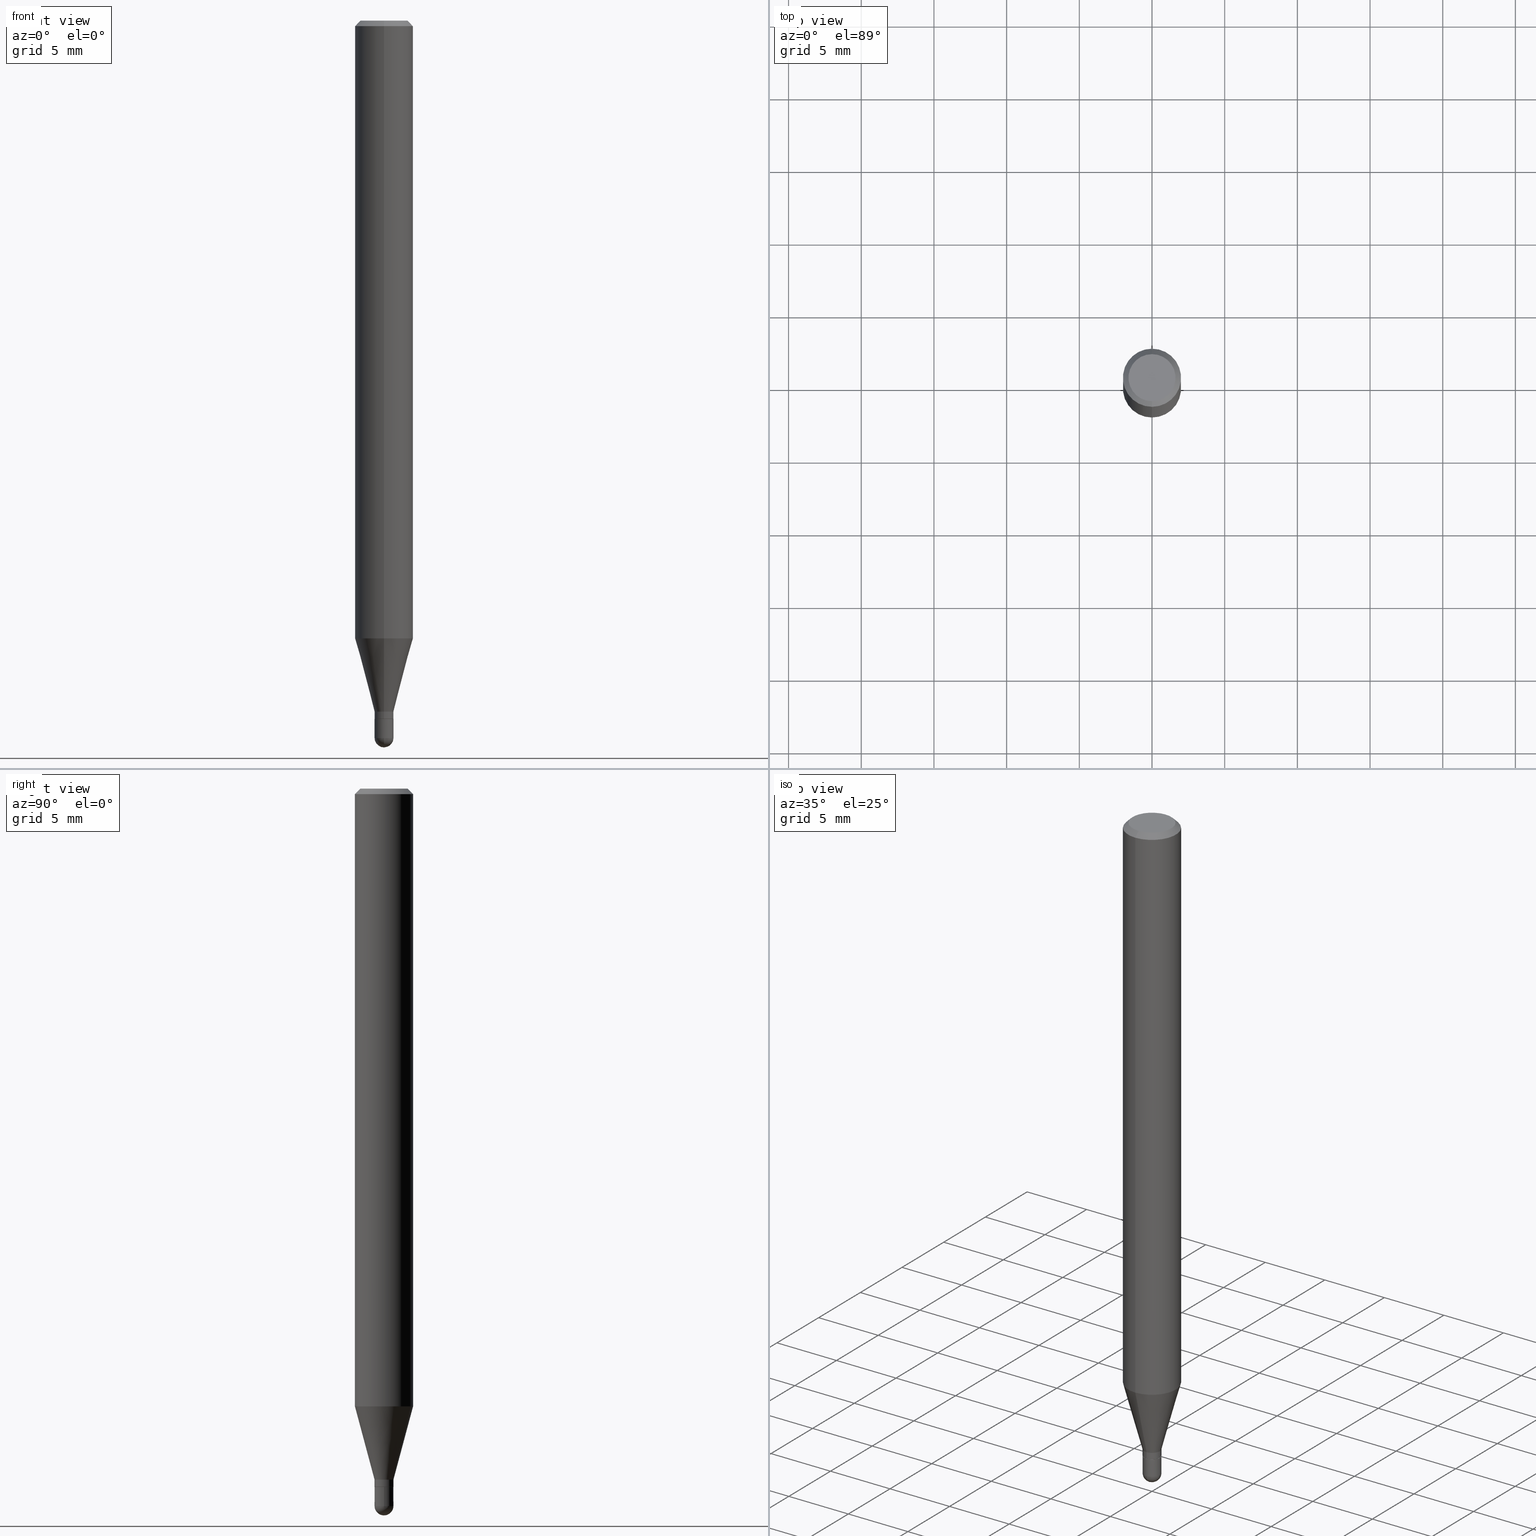
[diagram: canonical four-view strip — front | top / right | iso, engineering-drawing reading convention]
A machine part, canonical four-view strip (front | top / right | iso — engineering-drawing reading convention). The complete STEP part file that produces these views, byte-faithful:
ISO-10303-21;
HEADER;
FILE_DESCRIPTION (( 'STEP AP203' ),
    '1' );
FILE_NAME ('02034.STEP',
    '2024-03-07T19:57:47',
    ( '' ),
    ( '' ),
    'SwSTEP 2.0',
    'SolidWorks 2023',
    '' );
FILE_SCHEMA (( 'CONFIG_CONTROL_DESIGN' ));
ENDSEC;

DATA;
#1 = ORIENTED_EDGE ( 'NONE', *, *, #239, .T. ) ;
#2 = CYLINDRICAL_SURFACE ( 'NONE', #133, 0.02559999999999992143 ) ;
#3 = AXIS2_PLACEMENT_3D ( 'NONE', #367, #329, #167 ) ;
#4 = ORIENTED_EDGE ( 'NONE', *, *, #506, .T. ) ;
#5 = PERSON_AND_ORGANIZATION_ROLE ( 'design_owner' ) ;
#6 = DIRECTION ( 'NONE',  ( -6.982962677686264344E-15, -1.000000000000000000, 3.469013325287953293E-15 ) ) ;
#7 = DIRECTION ( 'NONE',  ( 6.982962677686265922E-15, 1.000000000000000000, 0.000000000000000000 ) ) ;
#8 = PLANE ( 'NONE',  #427 ) ;
#9 = EDGE_CURVE ( 'NONE', #489, #104, #83, .T. ) ;
#10 = CIRCLE ( 'NONE', #298, 0.06375000000000000111 ) ;
#11 = SPHERICAL_SURFACE ( 'NONE', #229, 0.02559999999999993531 ) ;
#12 = CARTESIAN_POINT ( 'NONE',  ( 0.000000000000000000, 0.000000000000000000, 0.000000000000000000 ) ) ;
#13 = CARTESIAN_POINT ( 'NONE',  ( 1.783462266758313745E-16, 0.02509999999999339843, -1.891699999999999937 ) ) ;
#14 = ADVANCED_FACE ( 'NONE', ( #326 ), #474, .F. ) ;
#15 = ORIENTED_EDGE ( 'NONE', *, *, #361, .T. ) ;
#16 = VECTOR ( 'NONE', #328, 39.37007874015748143 ) ;
#17 = CC_DESIGN_APPROVAL ( #455, ( #325 ) ) ;
#18 = CALENDAR_DATE ( 2024, 7, 3 ) ;
#19 = ADVANCED_FACE ( 'NONE', ( #238 ), #344, .T. ) ;
#20 = CARTESIAN_POINT ( 'NONE',  ( 4.751301343537101385E-29, -6.783599093238347569E-15, -1.942899999999999849 ) ) ;
#21 = CARTESIAN_POINT ( 'NONE',  ( 0.000000000000000000, 0.000000000000000000, 0.000000000000000000 ) ) ;
#22 = APPROVAL_DATE_TIME ( #28, #312 ) ;
#23 = EDGE_LOOP ( 'NONE', ( #35, #319 ) ) ;
#24 = EDGE_CURVE ( 'NONE', #197, #212, #233, .T. ) ;
#25 = PERSON_AND_ORGANIZATION ( #225, #350 ) ;
#26 = AXIS2_PLACEMENT_3D ( 'NONE', #294, #206, #486 ) ;
#27 = VERTEX_POINT ( 'NONE', #476 ) ;
#28 = DATE_AND_TIME ( #461, #338 ) ;
#29 = VERTEX_POINT ( 'NONE', #214 ) ;
#30 = ORIENTED_EDGE ( 'NONE', *, *, #506, .F. ) ;
#31 = EDGE_CURVE ( 'NONE', #191, #104, #275, .T. ) ;
#32 = VERTEX_POINT ( 'NONE', #379 ) ;
#33 = CARTESIAN_POINT ( 'NONE',  ( 4.751301343537101385E-29, -6.783599093238347569E-15, -1.942899999999999849 ) ) ;
#34 = LOCAL_TIME ( 14, 57, 47.00000000000000000, #182 ) ;
#35 = ORIENTED_EDGE ( 'NONE', *, *, #220, .F. ) ;
#36 = DIRECTION ( 'NONE',  ( -2.445468806185136597E-29, 3.491481338843145583E-15, 1.000000000000000000 ) ) ;
#37 = EDGE_CURVE ( 'NONE', #387, #322, #494, .T. ) ;
#38 = CLOSED_SHELL ( 'NONE', ( #448, #252, #58, #71, #188, #19, #66, #223, #385, #498, #213, #165 ) ) ;
#39 = APPROVAL_PERSON_ORGANIZATION ( #303, #455, #110 ) ;
#40 = CARTESIAN_POINT ( 'NONE',  ( -0.02560000000000000470, 1.818989403545856810E-16, -1.259247383105256139E-30 ) ) ;
#41 = ORIENTED_EDGE ( 'NONE', *, *, #334, .F. ) ;
#42 = CYLINDRICAL_SURFACE ( 'NONE', #26, 0.02559999999999992143 ) ;
#43 = EDGE_CURVE ( 'NONE', #489, #212, #510, .T. ) ;
#44 = DIMENSIONAL_EXPONENTS ( 1.000000000000000000, 0.000000000000000000, 0.000000000000000000, 0.000000000000000000, 0.000000000000000000, 0.000000000000000000, 0.000000000000000000 ) ;
#45 = DIRECTION ( 'NONE',  ( -1.000000000000000000, 7.105427357601001070E-15, -4.926315508542082329E-29 ) ) ;
#46 = LENGTH_MEASURE_WITH_UNIT ( LENGTH_MEASURE( 0.02539999999999999897 ), #416 );
#47 = AXIS2_PLACEMENT_3D ( 'NONE', #118, #435, #73 ) ;
#48 = CIRCLE ( 'NONE', #70, 0.07875000000000000056 ) ;
#49 = CARTESIAN_POINT ( 'NONE',  ( 1.818989403546307939E-16, 0.02559999999999338152, -1.871499999999999719 ) ) ;
#50 = DIRECTION ( 'NONE',  ( -2.445483200868437747E-29, 3.491460724837364104E-15, 1.000000000000000000 ) ) ;
#51 = LINE ( 'NONE', #253, #323 ) ;
#52 = DIRECTION ( 'NONE',  ( 2.445483200868437467E-29, -3.491460724837363709E-15, -1.000000000000000000 ) ) ;
#53 = CARTESIAN_POINT ( 'NONE',  ( 4.576721810425280278E-29, -6.534268746533124944E-15, -1.871499999999999719 ) ) ;
#54 = APPLICATION_PROTOCOL_DEFINITION ( 'international standard', 'config_control_design', 1994, #356 ) ;
#55 = DIRECTION ( 'NONE',  ( -2.445468806185136877E-29, 3.491481338843145188E-15, 1.000000000000000000 ) ) ;
#56 = ORIENTED_EDGE ( 'NONE', *, *, #37, .F. ) ;
#57 = CARTESIAN_POINT ( 'NONE',  ( 4.624897829482389577E-29, -6.603050522812422233E-15, -1.891199999999999992 ) ) ;
#58 = ADVANCED_FACE ( 'NONE', ( #64 ), #336, .T. ) ;
#59 = DIRECTION ( 'NONE',  ( -2.445483200868437467E-29, 3.491460724837363709E-15, 1.000000000000000000 ) ) ;
#60 = EDGE_LOOP ( 'NONE', ( #436, #451, #204, #72 ) ) ;
#61 = CIRCLE ( 'NONE', #466, 0.02560000000000000470 ) ;
#62 = AXIS2_PLACEMENT_3D ( 'NONE', #208, #368, #420 ) ;
#63 = ORIENTED_EDGE ( 'NONE', *, *, #313, .F. ) ;
#64 = FACE_OUTER_BOUND ( 'NONE', #357, .T. ) ;
#65 = PERSON_AND_ORGANIZATION_ROLE ( 'creator' ) ;
#66 = ADVANCED_FACE ( 'NONE', ( #101 ), #178, .T. ) ;
#67 = ORIENTED_EDGE ( 'NONE', *, *, #267, .T. ) ;
#68 = DATE_AND_TIME ( #311, #482 ) ;
#69 = CIRCLE ( 'NONE', #363, 0.02510000000000000078 ) ;
#70 = AXIS2_PLACEMENT_3D ( 'NONE', #274, #85, #479 ) ;
#71 = ADVANCED_FACE ( 'NONE', ( #259 ), #348, .T. ) ;
#72 = ORIENTED_EDGE ( 'NONE', *, *, #293, .F. ) ;
#73 = DIRECTION ( 'NONE',  ( -6.982962677686265922E-15, -1.000000000000000000, 0.000000000000000000 ) ) ;
#74 = CARTESIAN_POINT ( 'NONE',  ( 0.000000000000000000, 0.000000000000000000, 0.000000000000000000 ) ) ;
#75 = VERTEX_POINT ( 'NONE', #98 ) ;
#76 = DIRECTION ( 'NONE',  ( -6.982962677686265922E-15, -1.000000000000000000, 0.000000000000000000 ) ) ;
#77 = CARTESIAN_POINT ( 'NONE',  ( 1.787638445488146959E-16, 0.02559999999999339887, -1.891699999999999937 ) ) ;
#78 = CARTESIAN_POINT ( 'NONE',  ( -1.818989403545378809E-16, -0.02560000000000675624, -1.942899999999999849 ) ) ;
#79 = VECTOR ( 'NONE', #320, 39.37007874015748143 ) ;
#80 = VECTOR ( 'NONE', #446, 39.37007874015748143 ) ;
#81 = DIRECTION ( 'NONE',  ( 1.000000000000000000, -6.982962677686267499E-15, 4.876176775795935232E-29 ) ) ;
#82 = LINE ( 'NONE', #173, #434 ) ;
#83 = LINE ( 'NONE', #483, #79 ) ;
#84 = LINE ( 'NONE', #414, #211 ) ;
#85 = DIRECTION ( 'NONE',  ( -2.445483200868437747E-29, 3.491460724837364104E-15, 1.000000000000000000 ) ) ;
#86 = AXIS2_PLACEMENT_3D ( 'NONE', #393, #460, #452 ) ;
#87 = ORIENTED_EDGE ( 'NONE', *, *, #293, .T. ) ;
#88 = CIRCLE ( 'NONE', #146, 0.02559999999999993531 ) ;
#89 = EDGE_CURVE ( 'NONE', #322, #27, #286, .T. ) ;
#90 = DIRECTION ( 'NONE',  ( -2.445468806185136597E-29, 3.491481338843145583E-15, 1.000000000000000000 ) ) ;
#91 = DIRECTION ( 'NONE',  ( -6.982962677686264344E-15, -1.000000000000000000, 3.491460724837363315E-15 ) ) ;
#92 = DIRECTION ( 'NONE',  ( -6.982962677686265922E-15, -1.000000000000000000, 0.000000000000000000 ) ) ;
#93 = ORIENTED_EDGE ( 'NONE', *, *, #403, .F. ) ;
#94 = CARTESIAN_POINT ( 'NONE',  ( -5.402642173245076924E-16, -0.07875000000000004219, -0.01499999999999948944 ) ) ;
#95 = EDGE_LOOP ( 'NONE', ( #472, #290, #231, #277 ) ) ;
#96 =( NAMED_UNIT ( * ) PLANE_ANGLE_UNIT ( ) SI_UNIT ( $, .RADIAN. ) );
#97 = AXIS2_PLACEMENT_3D ( 'NONE', #467, #431, #7 ) ;
#98 = CARTESIAN_POINT ( 'NONE',  ( 1.787638445488156819E-16, 0.02559999999999318376, -1.942899999999999849 ) ) ;
#99 = EDGE_CURVE ( 'NONE', #240, #489, #388, .T. ) ;
#100 = ORIENTED_EDGE ( 'NONE', *, *, #327, .T. ) ;
#101 = FACE_OUTER_BOUND ( 'NONE', #160, .T. ) ;
#102 = FACE_OUTER_BOUND ( 'NONE', #396, .T. ) ;
#103 = APPROVAL_STATUS ( 'not_yet_approved' ) ;
#104 = VERTEX_POINT ( 'NONE', #390 ) ;
#105 = CLOSED_SHELL ( 'NONE', ( #243, #412, #14, #228, #392 ) ) ;
#106 = LOCAL_TIME ( 14, 57, 47.00000000000000000, #222 ) ;
#107 = CC_DESIGN_PERSON_AND_ORGANIZATION_ASSIGNMENT ( #265, #184, ( #271 ) ) ;
#108 = CALENDAR_DATE ( 2024, 7, 3 ) ;
#109 = SECURITY_CLASSIFICATION_LEVEL ( 'unclassified' ) ;
#110 = APPROVAL_ROLE ( '' ) ;
#111 = DIRECTION ( 'NONE',  ( 6.982962677686264344E-15, 1.000000000000000000, -3.496114991891765576E-15 ) ) ;
#112 = APPROVAL_ROLE ( '' ) ;
#113 = AXIS2_PLACEMENT_3D ( 'NONE', #21, #139, #351 ) ;
#114 = AXIS2_PLACEMENT_3D ( 'NONE', #442, #50, #91 ) ;
#115 = SPHERICAL_SURFACE ( 'NONE', #97, 0.02559999999999993531 ) ;
#116 = ORIENTED_EDGE ( 'NONE', *, *, #347, .T. ) ;
#117 = AXIS2_PLACEMENT_3D ( 'NONE', #149, #422, #144 ) ;
#118 = CARTESIAN_POINT ( 'NONE',  ( 4.576721810425280278E-29, -6.534268746533124944E-15, -1.871499999999999719 ) ) ;
#119 = ORIENTED_EDGE ( 'NONE', *, *, #464, .T. ) ;
#120 = ORIENTED_EDGE ( 'NONE', *, *, #307, .T. ) ;
#121 = CARTESIAN_POINT ( 'NONE',  ( 0.000000000000000000, 0.000000000000000000, 0.000000000000000000 ) ) ;
#122 = ORIENTED_EDGE ( 'NONE', *, *, #235, .T. ) ;
#123 = CARTESIAN_POINT ( 'NONE',  ( 3.668224801302598957E-31, -5.237191087255964114E-17, -0.01499999999999976526 ) ) ;
#124 = EDGE_CURVE ( 'NONE', #309, #75, #61, .T. ) ;
#125 = EDGE_LOOP ( 'NONE', ( #93, #499, #273, #413 ) ) ;
#126 = VECTOR ( 'NONE', #366, 39.37007874015748143 ) ;
#127 = CC_DESIGN_APPROVAL ( #312, ( #154 ) ) ;
#128 = CARTESIAN_POINT ( 'NONE',  ( -4.888104823412213911E-16, -0.06375000000000000111, 4.576775909784569323E-16 ) ) ;
#129 = LINE ( 'NONE', #40, #80 ) ;
#130 = PLANE ( 'NONE',  #276 ) ;
#131 = ADVANCED_BREP_SHAPE_REPRESENTATION ( '02034', ( #140, #492, #163 ), #299 ) ;
#132 = CARTESIAN_POINT ( 'NONE',  ( 4.749112117836802061E-29, -6.786734189044164629E-15, -1.942899999999999849 ) ) ;
#133 = AXIS2_PLACEMENT_3D ( 'NONE', #74, #199, #365 ) ;
#134 = CIRCLE ( 'NONE', #221, 0.02559999999999993531 ) ;
#135 = DIRECTION ( 'NONE',  ( -2.445483200868437747E-29, 3.491460724837364104E-15, 1.000000000000000000 ) ) ;
#136 = CARTESIAN_POINT ( 'NONE',  ( 5.595524044110787031E-16, 0.07875000000000000056, -2.749525320809424424E-16 ) ) ;
#137 = CARTESIAN_POINT ( 'NONE',  ( -0.02560000000000000470, -6.512318230609377306E-15, -1.891699999999999937 ) ) ;
#138 = ORIENTED_EDGE ( 'NONE', *, *, #152, .F. ) ;
#139 = DIRECTION ( 'NONE',  ( -2.445483200868437747E-29, 3.491460724837364104E-15, 1.000000000000000000 ) ) ;
#140 = MANIFOLD_SOLID_BREP ( 'Body-Move/Copy2[1]', #105 ) ;
#141 = DIRECTION ( 'NONE',  ( 1.000000000000000000, -6.982962677686267499E-15, 4.876176775795935232E-29 ) ) ;
#142 = CC_DESIGN_PERSON_AND_ORGANIZATION_ASSIGNMENT ( #453, #5, ( #358 ) ) ;
#143 = CARTESIAN_POINT ( 'NONE',  ( 4.624897829482389577E-29, -6.603050522812422233E-15, -1.891199999999999992 ) ) ;
#144 = DIRECTION ( 'NONE',  ( -6.982962677686264344E-15, -1.000000000000000000, 3.491460724837364498E-15 ) ) ;
#145 = CIRCLE ( 'NONE', #349, 0.02510000000000000078 ) ;
#146 = AXIS2_PLACEMENT_3D ( 'NONE', #423, #372, #341 ) ;
#147 = DATE_AND_TIME ( #108, #34 ) ;
#148 = ORIENTED_EDGE ( 'NONE', *, *, #470, .F. ) ;
#149 = CARTESIAN_POINT ( 'NONE',  ( 0.000000000000000000, 0.000000000000000000, 0.000000000000000000 ) ) ;
#150 = COORDINATED_UNIVERSAL_TIME_OFFSET ( 5, 0, .BEHIND. ) ;
#151 = CARTESIAN_POINT ( 'NONE',  ( 4.751301343537101385E-29, -6.783599093238347569E-15, -1.942899999999999849 ) ) ;
#152 = EDGE_CURVE ( 'NONE', #27, #322, #186, .T. ) ;
#153 = CIRCLE ( 'NONE', #270, 0.07875000000000000056 ) ;
#154 = PRODUCT_DEFINITION_FORMATION_WITH_SPECIFIED_SOURCE ( 'ANY', '', #358, .NOT_KNOWN. ) ;
#155 = ORIENTED_EDGE ( 'NONE', *, *, #89, .F. ) ;
#156 = CARTESIAN_POINT ( 'NONE',  ( 4.626093340660422729E-29, -6.604835248689577715E-15, -1.891699999999999937 ) ) ;
#157 = APPLICATION_CONTEXT ( 'configuration controlled 3d designs of mechanical parts and assemblies' ) ;
#158 = EDGE_CURVE ( 'NONE', #27, #240, #51, .T. ) ;
#159 = DIRECTION ( 'NONE',  ( -2.445468806185136597E-29, 3.491481338843145583E-15, 1.000000000000000000 ) ) ;
#160 = EDGE_LOOP ( 'NONE', ( #335, #419, #398, #170 ) ) ;
#161 = EDGE_LOOP ( 'NONE', ( #430, #1, #63, #190 ) ) ;
#162 = VECTOR ( 'NONE', #207, 39.37007874015748143 ) ;
#163 = AXIS2_PLACEMENT_3D ( 'NONE', #12, #480, #484 ) ;
#164 = EDGE_LOOP ( 'NONE', ( #421, #353, #138, #278 ) ) ;
#165 = ADVANCED_FACE ( 'NONE', ( #248 ), #2, .T. ) ;
#166 = VERTEX_POINT ( 'NONE', #78 ) ;
#167 = DIRECTION ( 'NONE',  ( -6.982962677686266711E-15, -1.000000000000000000, 0.000000000000000000 ) ) ;
#168 = CARTESIAN_POINT ( 'NONE',  ( 4.576721810425280278E-29, -6.534268746533124944E-15, -1.871499999999999719 ) ) ;
#169 = DIRECTION ( 'NONE',  ( -2.445468806185136597E-29, 3.491481338843145583E-15, 1.000000000000000000 ) ) ;
#170 = ORIENTED_EDGE ( 'NONE', *, *, #31, .F. ) ;
#171 = CIRCLE ( 'NONE', #377, 0.02560000000000000470 ) ;
#172 = DIRECTION ( 'NONE',  ( 6.982962677686265922E-15, 1.000000000000000000, 0.000000000000000000 ) ) ;
#173 = CARTESIAN_POINT ( 'NONE',  ( 5.499083108677937401E-16, 0.07874999999999994504, -0.01500000000000004108 ) ) ;
#174 = PRODUCT_RELATED_PRODUCT_CATEGORY ( 'detail', '', ( #358 ) ) ;
#175 = MECHANICAL_CONTEXT ( 'NONE', #356, 'mechanical' ) ;
#176 = VECTOR ( 'NONE', #224, 39.37007874015748143 ) ;
#177 = AXIS2_PLACEMENT_3D ( 'NONE', #168, #386, #490 ) ;
#178 = CYLINDRICAL_SURFACE ( 'NONE', #113, 0.07875000000000000056 ) ;
#179 = DATE_AND_TIME ( #18, #245 ) ;
#180 = PRODUCT_DEFINITION_SHAPE ( 'NONE', 'NONE',  #325 ) ;
#181 = DIRECTION ( 'NONE',  ( -2.445468806185136597E-29, 3.491481338843145583E-15, 1.000000000000000000 ) ) ;
#182 = COORDINATED_UNIVERSAL_TIME_OFFSET ( 5, 0, .BEHIND. ) ;
#183 = CARTESIAN_POINT ( 'NONE',  ( 5.595524044111194280E-16, 0.07874999999999414413, -1.673141499577714519 ) ) ;
#184 = PERSON_AND_ORGANIZATION_ROLE ( 'classification_officer' ) ;
#185 = DIRECTION ( 'NONE',  ( -2.445483200868437747E-29, 3.491460724837364104E-15, 1.000000000000000000 ) ) ;
#186 = CIRCLE ( 'NONE', #418, 0.02559999999999992490 ) ;
#187 = ORIENTED_EDGE ( 'NONE', *, *, #124, .T. ) ;
#188 = ADVANCED_FACE ( 'NONE', ( #321 ), #395, .T. ) ;
#189 = PERSON_AND_ORGANIZATION_ROLE ( 'creator' ) ;
#190 = ORIENTED_EDGE ( 'NONE', *, *, #9, .F. ) ;
#191 = VERTEX_POINT ( 'NONE', #343 ) ;
#192 = CIRCLE ( 'NONE', #426, 0.02560000000000000470 ) ;
#193 = EDGE_CURVE ( 'NONE', #511, #378, #10, .T. ) ;
#194 = EDGE_LOOP ( 'NONE', ( #462, #406 ) ) ;
#195 = DIRECTION ( 'NONE',  ( -1.000000000000000000, 6.982962677686265922E-15, -4.876176775795935793E-29 ) ) ;
#196 = VERTEX_POINT ( 'NONE', #137 ) ;
#197 = VERTEX_POINT ( 'NONE', #504 ) ;
#198 = AXIS2_PLACEMENT_3D ( 'NONE', #217, #135, #384 ) ;
#199 = DIRECTION ( 'NONE',  ( -2.445483200868437747E-29, 3.491460724837364104E-15, 1.000000000000000000 ) ) ;
#200 = CC_DESIGN_SECURITY_CLASSIFICATION ( #271, ( #154 ) ) ;
#201 = FACE_OUTER_BOUND ( 'NONE', #164, .T. ) ;
#202 = CARTESIAN_POINT ( 'NONE',  ( 4.975360907851465623E-16, 0.06375000000000000111, 1.251634856169306932E-17 ) ) ;
#203 = DIRECTION ( 'NONE',  ( -2.445468806185136597E-29, 3.491481338843145583E-15, 1.000000000000000000 ) ) ;
#204 = ORIENTED_EDGE ( 'NONE', *, *, #158, .T. ) ;
#205 = CARTESIAN_POINT ( 'NONE',  ( 0.02560000000000000470, -6.783599093238346780E-15, -1.891699999999999937 ) ) ;
#206 = DIRECTION ( 'NONE',  ( -2.445483200868437747E-29, 3.491460724837364104E-15, 1.000000000000000000 ) ) ;
#207 = DIRECTION ( 'NONE',  ( -2.445483200868437747E-29, 3.491460724837363709E-15, 1.000000000000000000 ) ) ;
#208 = CARTESIAN_POINT ( 'NONE',  ( 4.626093340660422729E-29, -6.604835248689577715E-15, -1.891699999999999937 ) ) ;
#209 = DIRECTION ( 'NONE',  ( -2.445483200868437747E-29, 3.491460724837364104E-15, 1.000000000000000000 ) ) ;
#210 = AXIS2_PLACEMENT_3D ( 'NONE', #57, #219, #306 ) ;
#211 = VECTOR ( 'NONE', #55, 39.37007874015748143 ) ;
#212 = VERTEX_POINT ( 'NONE', #183 ) ;
#213 = ADVANCED_FACE ( 'NONE', ( #342 ), #305, .T. ) ;
#214 = CARTESIAN_POINT ( 'NONE',  ( 4.812810732125291051E-29, -6.874548563415640631E-15, -1.968499999999999694 ) ) ;
#215 = CARTESIAN_POINT ( 'NONE',  ( 4.626120571082823143E-29, -6.604796253174841162E-15, -1.891699999999999937 ) ) ;
#216 = DIRECTION ( 'NONE',  ( -6.982962677686266711E-15, -1.000000000000000000, 0.000000000000000000 ) ) ;
#217 = CARTESIAN_POINT ( 'NONE',  ( 4.091639429893126858E-29, -5.841707832871080184E-15, -1.673141499577714297 ) ) ;
#218 = DIRECTION ( 'NONE',  ( -1.000000000000000000, 6.982962677686265922E-15, -4.883557194083112340E-29 ) ) ;
#219 = DIRECTION ( 'NONE',  ( -2.445483200868437747E-29, 3.491460724837364104E-15, 1.000000000000000000 ) ) ;
#220 = EDGE_CURVE ( 'NONE', #315, #387, #145, .T. ) ;
#221 = AXIS2_PLACEMENT_3D ( 'NONE', #471, #45, #260 ) ;
#222 = COORDINATED_UNIVERSAL_TIME_OFFSET ( 5, 0, .BEHIND. ) ;
#223 = ADVANCED_FACE ( 'NONE', ( #256 ), #263, .T. ) ;
#224 = DIRECTION ( 'NONE',  ( 5.024295867788190974E-15, 0.7071067811865681119, 0.7071067811865270336 ) ) ;
#225 = PERSON ( 'UNSPECIFIED', 'UNSPECIFIED', 'UNSPECIFIED', ('UNSPECIFIED'), ('UNSPECIFIED'), ('UNSPECIFIED') ) ;
#226 = ORIENTED_EDGE ( 'NONE', *, *, #24, .F. ) ;
#227 = CIRCLE ( 'NONE', #481, 0.02560000000000000470 ) ;
#228 = ADVANCED_FACE ( 'NONE', ( #247 ), #115, .T. ) ;
#229 = AXIS2_PLACEMENT_3D ( 'NONE', #132, #218, #172 ) ;
#230 = APPROVAL_STATUS ( 'not_yet_approved' ) ;
#231 = ORIENTED_EDGE ( 'NONE', *, *, #334, .T. ) ;
#232 = ORIENTED_EDGE ( 'NONE', *, *, #333, .F. ) ;
#233 = LINE ( 'NONE', #49, #16 ) ;
#234 = EDGE_LOOP ( 'NONE', ( #4, #475, #291, #415 ) ) ;
#235 = EDGE_CURVE ( 'NONE', #75, #32, #227, .T. ) ;
#236 = AXIS2_PLACEMENT_3D ( 'NONE', #123, #283, #440 ) ;
#237 = CARTESIAN_POINT ( 'NONE',  ( 1.818989403546307200E-16, 0.02559999999999323927, -1.891199999999999992 ) ) ;
#238 = FACE_OUTER_BOUND ( 'NONE', #437, .T. ) ;
#239 = EDGE_CURVE ( 'NONE', #212, #191, #445, .T. ) ;
#240 = VERTEX_POINT ( 'NONE', #373 ) ;
#241 = DIRECTION ( 'NONE',  ( 2.438088387897960049E-29, -3.491481338843145188E-15, -1.000000000000000000 ) ) ;
#242 = CC_DESIGN_DATE_AND_TIME_ASSIGNMENT ( #68, #456, ( #325 ) ) ;
#243 = ADVANCED_FACE ( 'NONE', ( #300 ), #244, .T. ) ;
#244 = CYLINDRICAL_SURFACE ( 'NONE', #389, 0.02560000000000000470 ) ;
#245 = LOCAL_TIME ( 14, 57, 47.00000000000000000, #150 ) ;
#246 = DIRECTION ( 'NONE',  ( -6.982962677686265922E-15, -1.000000000000000000, 3.491460724837363709E-15 ) ) ;
#247 = FACE_OUTER_BOUND ( 'NONE', #125, .T. ) ;
#248 = FACE_OUTER_BOUND ( 'NONE', #60, .T. ) ;
#249 = ORIENTED_EDGE ( 'NONE', *, *, #152, .T. ) ;
#250 = DIRECTION ( 'NONE',  ( -2.445483200868437747E-29, 3.491460724837364104E-15, 1.000000000000000000 ) ) ;
#251 = FACE_OUTER_BOUND ( 'NONE', #408, .T. ) ;
#252 = ADVANCED_FACE ( 'NONE', ( #201 ), #449, .T. ) ;
#253 = CARTESIAN_POINT ( 'NONE',  ( -1.787638445487678572E-16, -0.02559999999999992143, 8.938139455583624813E-17 ) ) ;
#254 = ORIENTED_EDGE ( 'NONE', *, *, #193, .F. ) ;
#255 = LINE ( 'NONE', #94, #496 ) ;
#256 = FACE_OUTER_BOUND ( 'NONE', #95, .T. ) ;
#257 = CARTESIAN_POINT ( 'NONE',  ( 4.451638707024993845E-16, 0.06375000000000000111, -1.050321363233444415E-16 ) ) ;
#258 = EDGE_CURVE ( 'NONE', #387, #315, #69, .T. ) ;
#259 = FACE_OUTER_BOUND ( 'NONE', #161, .T. ) ;
#260 = DIRECTION ( 'NONE',  ( -7.105427357601001070E-15, -1.000000000000000000, 0.000000000000000000 ) ) ;
#261 = DATE_TIME_ROLE ( 'classification_date' ) ;
#262 = LINE ( 'NONE', #468, #512 ) ;
#263 = CONICAL_SURFACE ( 'NONE', #374, 0.07875000000000000056, 0.7853981633974483900 ) ;
#264 = CIRCLE ( 'NONE', #177, 0.02559999999999991796 ) ;
#265 = PERSON_AND_ORGANIZATION ( #225, #350 ) ;
#266 = APPROVAL_ROLE ( '' ) ;
#267 = EDGE_CURVE ( 'NONE', #32, #166, #192, .T. ) ;
#268 = PERSON_AND_ORGANIZATION ( #225, #350 ) ;
#269 = LINE ( 'NONE', #505, #126 ) ;
#270 = AXIS2_PLACEMENT_3D ( 'NONE', #371, #250, #6 ) ;
#271 = SECURITY_CLASSIFICATION ( '', '', #109 ) ;
#272 = CC_DESIGN_PERSON_AND_ORGANIZATION_ASSIGNMENT ( #458, #500, ( #154 ) ) ;
#273 = ORIENTED_EDGE ( 'NONE', *, *, #124, .F. ) ;
#274 = CARTESIAN_POINT ( 'NONE',  ( 3.668224801302598957E-31, -5.237191087255964114E-17, -0.01499999999999976526 ) ) ;
#275 = CIRCLE ( 'NONE', #236, 0.07875000000000000056 ) ;
#276 = AXIS2_PLACEMENT_3D ( 'NONE', #257, #52, #383 ) ;
#277 = ORIENTED_EDGE ( 'NONE', *, *, #31, .T. ) ;
#278 = ORIENTED_EDGE ( 'NONE', *, *, #307, .F. ) ;
#279 = EDGE_LOOP ( 'NONE', ( #402, #284 ) ) ;
#280 = EDGE_CURVE ( 'NONE', #212, #489, #153, .T. ) ;
#281 = CC_DESIGN_PERSON_AND_ORGANIZATION_ASSIGNMENT ( #268, #65, ( #325 ) ) ;
#282 = ORIENTED_EDGE ( 'NONE', *, *, #355, .F. ) ;
#283 = DIRECTION ( 'NONE',  ( -2.445483200868437747E-29, 3.491460724837364104E-15, 1.000000000000000000 ) ) ;
#284 = ORIENTED_EDGE ( 'NONE', *, *, #333, .T. ) ;
#285 = DIRECTION ( 'NONE',  ( -6.982962677686266711E-15, -1.000000000000000000, 0.000000000000000000 ) ) ;
#286 = CIRCLE ( 'NONE', #210, 0.02559999999999992490 ) ;
#287 = FACE_OUTER_BOUND ( 'NONE', #23, .T. ) ;
#288 = DIRECTION ( 'NONE',  ( -2.445483200868437747E-29, 3.491460724837364104E-15, 1.000000000000000000 ) ) ;
#289 = APPROVAL_PERSON_ORGANIZATION ( #425, #312, #266 ) ;
#290 = ORIENTED_EDGE ( 'NONE', *, *, #428, .F. ) ;
#291 = ORIENTED_EDGE ( 'NONE', *, *, #43, .F. ) ;
#292 = DIRECTION ( 'NONE',  ( 1.000000000000000000, -6.982962677686263555E-15, 0.000000000000000000 ) ) ;
#293 = EDGE_CURVE ( 'NONE', #197, #240, #441, .T. ) ;
#294 = CARTESIAN_POINT ( 'NONE',  ( 0.000000000000000000, 0.000000000000000000, 0.000000000000000000 ) ) ;
#295 =( CONVERSION_BASED_UNIT ( 'INCH', #46 ) LENGTH_UNIT ( ) NAMED_UNIT ( #44 ) );
#296 = CARTESIAN_POINT ( 'NONE',  ( 4.626120571082823143E-29, -6.604796253174841162E-15, -1.891699999999999937 ) ) ;
#297 = DIRECTION ( 'NONE',  ( 4.937700262164548042E-15, 0.7071067811865451302, -0.7071067811865499042 ) ) ;
#298 = AXIS2_PLACEMENT_3D ( 'NONE', #497, #209, #340 ) ;
#299 =( GEOMETRIC_REPRESENTATION_CONTEXT ( 3 ) GLOBAL_UNCERTAINTY_ASSIGNED_CONTEXT ( ( #502 ) ) GLOBAL_UNIT_ASSIGNED_CONTEXT ( ( #295, #96, #380 ) ) REPRESENTATION_CONTEXT ( 'NONE', 'WORKASPACE' ) );
#300 = FACE_OUTER_BOUND ( 'NONE', #443, .T. ) ;
#301 = ORIENTED_EDGE ( 'NONE', *, *, #267, .F. ) ;
#302 = DIRECTION ( 'NONE',  ( -1.807323732225330139E-15, -0.2588190451025181860, 0.9659258262890689783 ) ) ;
#303 = PERSON_AND_ORGANIZATION ( #225, #350 ) ;
#304 = DESIGN_CONTEXT ( 'detailed design', #157, 'design' ) ;
#305 = CONICAL_SURFACE ( 'NONE', #432, 0.02510000000000000078, 0.7853981633974739252 ) ;
#306 = DIRECTION ( 'NONE',  ( -6.982962677686265922E-15, -1.000000000000000000, 0.000000000000000000 ) ) ;
#307 = EDGE_CURVE ( 'NONE', #315, #27, #269, .T. ) ;
#308 = SHAPE_DEFINITION_REPRESENTATION ( #180, #131 ) ;
#309 = VERTEX_POINT ( 'NONE', #316 ) ;
#310 = CYLINDRICAL_SURFACE ( 'NONE', #324, 0.02560000000000000470 ) ;
#311 = CALENDAR_DATE ( 2024, 7, 3 ) ;
#312 = APPROVAL ( #103, 'UNSPECIFIED' ) ;
#313 = EDGE_CURVE ( 'NONE', #104, #191, #48, .T. ) ;
#314 = CIRCLE ( 'NONE', #62, 0.02560000000000000470 ) ;
#315 = VERTEX_POINT ( 'NONE', #318 ) ;
#316 = CARTESIAN_POINT ( 'NONE',  ( 0.02560000000000000470, -6.872981015512730918E-15, -1.942899999999999849 ) ) ;
#317 = DIRECTION ( 'NONE',  ( 1.000000000000000000, -6.982962677686263555E-15, 0.000000000000000000 ) ) ;
#318 = CARTESIAN_POINT ( 'NONE',  ( -1.752723632098790469E-16, -0.02510000000000660661, -1.891699999999999937 ) ) ;
#319 = ORIENTED_EDGE ( 'NONE', *, *, #258, .F. ) ;
#320 = DIRECTION ( 'NONE',  ( -2.445483200868437747E-29, 3.491460724837363709E-15, 1.000000000000000000 ) ) ;
#321 = FACE_OUTER_BOUND ( 'NONE', #234, .T. ) ;
#322 = VERTEX_POINT ( 'NONE', #237 ) ;
#323 = VECTOR ( 'NONE', #382, 39.37007874015748143 ) ;
#324 = AXIS2_PLACEMENT_3D ( 'NONE', #409, #36, #141 ) ;
#325 = PRODUCT_DEFINITION ( 'UNKNOWN', '', #154, #304 ) ;
#326 = FACE_OUTER_BOUND ( 'NONE', #279, .T. ) ;
#327 = EDGE_CURVE ( 'NONE', #166, #309, #411, .T. ) ;
#328 = DIRECTION ( 'NONE',  ( 1.839019923739600315E-15, 0.2588190451025249583, 0.9659258262890670910 ) ) ;
#329 = DIRECTION ( 'NONE',  ( -2.445483200868437747E-29, 3.491460724837364104E-15, 1.000000000000000000 ) ) ;
#330 = ORIENTED_EDGE ( 'NONE', *, *, #403, .T. ) ;
#331 = CARTESIAN_POINT ( 'NONE',  ( 4.626120571082823143E-29, -6.604796253174841162E-15, -1.891699999999999937 ) ) ;
#332 = ORIENTED_EDGE ( 'NONE', *, *, #439, .F. ) ;
#333 = EDGE_CURVE ( 'NONE', #196, #399, #171, .T. ) ;
#334 = EDGE_CURVE ( 'NONE', #378, #191, #82, .T. ) ;
#335 = ORIENTED_EDGE ( 'NONE', *, *, #239, .F. ) ;
#336 = CONICAL_SURFACE ( 'NONE', #86, 0.07875000000000000056, 0.7853981633974483900 ) ;
#337 = APPLICATION_PROTOCOL_DEFINITION ( 'international standard', 'config_control_design', 1994, #157 ) ;
#338 = LOCAL_TIME ( 14, 57, 47.00000000000000000, #508 ) ;
#339 = DIRECTION ( 'NONE',  ( 1.000000000000000000, -6.982962677686263555E-15, 0.000000000000000000 ) ) ;
#340 = DIRECTION ( 'NONE',  ( -6.982962677686264344E-15, -1.000000000000000000, 3.491460724837363315E-15 ) ) ;
#341 = DIRECTION ( 'NONE',  ( 6.982962677686265922E-15, 1.000000000000000000, 0.000000000000000000 ) ) ;
#342 = FACE_OUTER_BOUND ( 'NONE', #424, .T. ) ;
#343 = CARTESIAN_POINT ( 'NONE',  ( 5.595524044111200197E-16, 0.07874999999999994504, -0.01500000000000004108 ) ) ;
#344 = CONICAL_SURFACE ( 'NONE', #47, 0.02559999999999991796, 0.2617993877991502960 ) ;
#345 = CARTESIAN_POINT ( 'NONE',  ( -1.787638445487220540E-16, -0.02560000000000645440, -1.871499999999999719 ) ) ;
#346 = CARTESIAN_POINT ( 'NONE',  ( 4.626120571082823143E-29, -6.604796253174841162E-15, -1.891699999999999937 ) ) ;
#347 = EDGE_CURVE ( 'NONE', #322, #197, #262, .T. ) ;
#348 = CYLINDRICAL_SURFACE ( 'NONE', #117, 0.07875000000000000056 ) ;
#349 = AXIS2_PLACEMENT_3D ( 'NONE', #296, #447, #216 ) ;
#350 = ORGANIZATION ( 'UNSPECIFIED', 'UNSPECIFIED', '' ) ;
#351 = DIRECTION ( 'NONE',  ( -6.982962677686264344E-15, -1.000000000000000000, 3.491460724837364498E-15 ) ) ;
#352 = DIRECTION ( 'NONE',  ( -6.982962677686265922E-15, -1.000000000000000000, 0.000000000000000000 ) ) ;
#353 = ORIENTED_EDGE ( 'NONE', *, *, #37, .T. ) ;
#354 = DATE_AND_TIME ( #397, #106 ) ;
#355 = EDGE_CURVE ( 'NONE', #309, #399, #84, .T. ) ;
#356 = APPLICATION_CONTEXT ( 'configuration controlled 3d designs of mechanical parts and assemblies' ) ;
#357 = EDGE_LOOP ( 'NONE', ( #254, #119, #509, #41 ) ) ;
#358 = PRODUCT ( '02034', '02034', '', ( #175 ) ) ;
#359 = AXIS2_PLACEMENT_3D ( 'NONE', #53, #185, #352 ) ;
#360 = AXIS2_PLACEMENT_3D ( 'NONE', #33, #362, #317 ) ;
#361 = EDGE_CURVE ( 'NONE', #32, #196, #129, .T. ) ;
#362 = DIRECTION ( 'NONE',  ( -2.445468806185136597E-29, 3.491481338843145583E-15, 1.000000000000000000 ) ) ;
#363 = AXIS2_PLACEMENT_3D ( 'NONE', #331, #478, #285 ) ;
#364 = CIRCLE ( 'NONE', #114, 0.06375000000000000111 ) ;
#365 = DIRECTION ( 'NONE',  ( -6.982962677686265922E-15, -1.000000000000000000, 3.491460724837364104E-15 ) ) ;
#366 = DIRECTION ( 'NONE',  ( -4.937700262164674260E-15, -0.7071067811865632269, 0.7071067811865319186 ) ) ;
#367 = CARTESIAN_POINT ( 'NONE',  ( 4.626120571082823143E-29, -6.604796253174841162E-15, -1.891699999999999937 ) ) ;
#368 = DIRECTION ( 'NONE',  ( -2.445468806185136597E-29, 3.491481338843145583E-15, 1.000000000000000000 ) ) ;
#369 = FACE_OUTER_BOUND ( 'NONE', #194, .T. ) ;
#370 = CC_DESIGN_PERSON_AND_ORGANIZATION_ASSIGNMENT ( #465, #189, ( #154 ) ) ;
#371 = CARTESIAN_POINT ( 'NONE',  ( 4.091639429893126858E-29, -5.841707832871080184E-15, -1.673141499577714297 ) ) ;
#372 = DIRECTION ( 'NONE',  ( 1.000000000000000000, -6.982962677686265922E-15, 4.883557194083112340E-29 ) ) ;
#373 = CARTESIAN_POINT ( 'NONE',  ( -1.787638445487220540E-16, -0.02560000000000645440, -1.871499999999999719 ) ) ;
#374 = AXIS2_PLACEMENT_3D ( 'NONE', #381, #491, #111 ) ;
#375 = CARTESIAN_POINT ( 'NONE',  ( -5.499083108677527193E-16, -0.07875000000000585698, -1.673141499577714075 ) ) ;
#376 = DIRECTION ( 'NONE',  ( -2.445483200868437747E-29, 3.491460724837364104E-15, 1.000000000000000000 ) ) ;
#377 = AXIS2_PLACEMENT_3D ( 'NONE', #156, #159, #438 ) ;
#378 = VERTEX_POINT ( 'NONE', #202 ) ;
#379 = CARTESIAN_POINT ( 'NONE',  ( -0.02560000000000000470, -6.512318230609377306E-15, -1.942899999999999849 ) ) ;
#380 =( NAMED_UNIT ( * ) SI_UNIT ( $, .STERADIAN. ) SOLID_ANGLE_UNIT ( ) );
#381 = CARTESIAN_POINT ( 'NONE',  ( 3.668224801302598957E-31, -5.237191087255964114E-17, -0.01499999999999976526 ) ) ;
#382 = DIRECTION ( 'NONE',  ( -2.445483200868437747E-29, 3.491460724837363709E-15, 1.000000000000000000 ) ) ;
#383 = DIRECTION ( 'NONE',  ( 6.982962677686265922E-15, 1.000000000000000000, -3.491460724837363709E-15 ) ) ;
#384 = DIRECTION ( 'NONE',  ( -6.982962677686264344E-15, -1.000000000000000000, 3.469013325287953293E-15 ) ) ;
#385 = ADVANCED_FACE ( 'NONE', ( #369 ), #130, .F. ) ;
#386 = DIRECTION ( 'NONE',  ( -2.445483200868437747E-29, 3.491460724837364104E-15, 1.000000000000000000 ) ) ;
#387 = VERTEX_POINT ( 'NONE', #407 ) ;
#388 = LINE ( 'NONE', #345, #495 ) ;
#389 = AXIS2_PLACEMENT_3D ( 'NONE', #121, #90, #81 ) ;
#390 = CARTESIAN_POINT ( 'NONE',  ( -5.499083108677930499E-16, -0.07875000000000004219, -0.01499999999999948944 ) ) ;
#391 = COORDINATED_UNIVERSAL_TIME_OFFSET ( 5, 0, .BEHIND. ) ;
#392 = ADVANCED_FACE ( 'NONE', ( #410 ), #310, .T. ) ;
#393 = CARTESIAN_POINT ( 'NONE',  ( 3.668224801302598957E-31, -5.237191087255964114E-17, -0.01499999999999976526 ) ) ;
#394 = APPROVAL_DATE_TIME ( #147, #455 ) ;
#395 = CONICAL_SURFACE ( 'NONE', #459, 0.02559999999999991796, 0.2617993877991502960 ) ;
#396 = EDGE_LOOP ( 'NONE', ( #249, #116, #30, #404 ) ) ;
#397 = CALENDAR_DATE ( 2024, 7, 3 ) ;
#398 = ORIENTED_EDGE ( 'NONE', *, *, #9, .T. ) ;
#399 = VERTEX_POINT ( 'NONE', #205 ) ;
#400 = APPROVAL ( #230, 'UNSPECIFIED' ) ;
#401 = ORIENTED_EDGE ( 'NONE', *, *, #355, .T. ) ;
#402 = ORIENTED_EDGE ( 'NONE', *, *, #439, .T. ) ;
#403 = EDGE_CURVE ( 'NONE', #29, #166, #134, .T. ) ;
#404 = ORIENTED_EDGE ( 'NONE', *, *, #158, .F. ) ;
#405 = APPROVAL_PERSON_ORGANIZATION ( #25, #400, #112 ) ;
#406 = ORIENTED_EDGE ( 'NONE', *, *, #193, .T. ) ;
#407 = CARTESIAN_POINT ( 'NONE',  ( 1.801225835152313554E-16, 0.02509999999999339843, -1.891699999999999937 ) ) ;
#408 = EDGE_LOOP ( 'NONE', ( #148, #330, #301, #477 ) ) ;
#409 = CARTESIAN_POINT ( 'NONE',  ( 0.000000000000000000, 0.000000000000000000, 0.000000000000000000 ) ) ;
#410 = FACE_OUTER_BOUND ( 'NONE', #493, .T. ) ;
#411 = CIRCLE ( 'NONE', #360, 0.02560000000000000470 ) ;
#412 = ADVANCED_FACE ( 'NONE', ( #251 ), #11, .T. ) ;
#413 = ORIENTED_EDGE ( 'NONE', *, *, #327, .F. ) ;
#414 = CARTESIAN_POINT ( 'NONE',  ( 0.02560000000000000470, -1.787638445487684735E-16, 1.248301254603759692E-30 ) ) ;
#415 = ORIENTED_EDGE ( 'NONE', *, *, #99, .F. ) ;
#416 =( LENGTH_UNIT ( ) NAMED_UNIT ( * ) SI_UNIT ( $, .METRE. ) );
#417 = ORIENTED_EDGE ( 'NONE', *, *, #280, .F. ) ;
#418 = AXIS2_PLACEMENT_3D ( 'NONE', #143, #457, #76 ) ;
#419 = ORIENTED_EDGE ( 'NONE', *, *, #280, .T. ) ;
#420 = DIRECTION ( 'NONE',  ( 1.000000000000000000, -6.982962677686263555E-15, 0.000000000000000000 ) ) ;
#421 = ORIENTED_EDGE ( 'NONE', *, *, #220, .T. ) ;
#422 = DIRECTION ( 'NONE',  ( -2.445483200868437747E-29, 3.491460724837364104E-15, 1.000000000000000000 ) ) ;
#423 = CARTESIAN_POINT ( 'NONE',  ( 4.749112117836802061E-29, -6.786734189044164629E-15, -1.942899999999999849 ) ) ;
#424 = EDGE_LOOP ( 'NONE', ( #56, #454, #120, #155 ) ) ;
#425 = PERSON_AND_ORGANIZATION ( #225, #350 ) ;
#426 = AXIS2_PLACEMENT_3D ( 'NONE', #151, #203, #339 ) ;
#427 = AXIS2_PLACEMENT_3D ( 'NONE', #215, #59, #246 ) ;
#428 = EDGE_CURVE ( 'NONE', #378, #511, #364, .T. ) ;
#429 = DIRECTION ( 'NONE',  ( -2.445483200868437747E-29, 3.491460724837363709E-15, 1.000000000000000000 ) ) ;
#430 = ORIENTED_EDGE ( 'NONE', *, *, #43, .T. ) ;
#431 = DIRECTION ( 'NONE',  ( -1.000000000000000000, 6.982962677686265922E-15, -4.883557194083112340E-29 ) ) ;
#432 = AXIS2_PLACEMENT_3D ( 'NONE', #346, #376, #487 ) ;
#433 = ORIENTED_EDGE ( 'NONE', *, *, #99, .T. ) ;
#434 = VECTOR ( 'NONE', #297, 39.37007874015748143 ) ;
#435 = DIRECTION ( 'NONE',  ( -2.445483200868437747E-29, 3.491460724837364104E-15, 1.000000000000000000 ) ) ;
#436 = ORIENTED_EDGE ( 'NONE', *, *, #347, .F. ) ;
#437 = EDGE_LOOP ( 'NONE', ( #226, #87, #433, #417 ) ) ;
#438 = DIRECTION ( 'NONE',  ( 1.000000000000000000, -6.982962677686263555E-15, 0.000000000000000000 ) ) ;
#439 = EDGE_CURVE ( 'NONE', #399, #196, #314, .T. ) ;
#440 = DIRECTION ( 'NONE',  ( -6.982962677686264344E-15, -1.000000000000000000, 3.496114991891765576E-15 ) ) ;
#441 = CIRCLE ( 'NONE', #359, 0.02559999999999991796 ) ;
#442 = CARTESIAN_POINT ( 'NONE',  ( -5.749256901477933004E-45, 8.208318364804939578E-31, 2.350969697700750185E-16 ) ) ;
#443 = EDGE_LOOP ( 'NONE', ( #122, #15, #332, #282, #187 ) ) ;
#444 = DIRECTION ( 'NONE',  ( -4.851104656540964275E-15, -0.7071067811865500152, -0.7071067811865450192 ) ) ;
#445 = LINE ( 'NONE', #136, #162 ) ;
#446 = DIRECTION ( 'NONE',  ( -2.445468806185136877E-29, 3.491481338843145188E-15, 1.000000000000000000 ) ) ;
#447 = DIRECTION ( 'NONE',  ( -2.445483200868437747E-29, 3.491460724837364104E-15, 1.000000000000000000 ) ) ;
#448 = ADVANCED_FACE ( 'NONE', ( #102 ), #42, .T. ) ;
#449 = CONICAL_SURFACE ( 'NONE', #3, 0.02510000000000000078, 0.7853981633974739252 ) ;
#450 = CC_DESIGN_APPROVAL ( #400, ( #271 ) ) ;
#451 = ORIENTED_EDGE ( 'NONE', *, *, #89, .T. ) ;
#452 = DIRECTION ( 'NONE',  ( 6.982962677686264344E-15, 1.000000000000000000, -3.496114991891765576E-15 ) ) ;
#453 = PERSON_AND_ORGANIZATION ( #225, #350 ) ;
#454 = ORIENTED_EDGE ( 'NONE', *, *, #258, .T. ) ;
#455 = APPROVAL ( #507, 'UNSPECIFIED' ) ;
#456 = DATE_TIME_ROLE ( 'creation_date' ) ;
#457 = DIRECTION ( 'NONE',  ( -2.445483200868437747E-29, 3.491460724837364104E-15, 1.000000000000000000 ) ) ;
#458 = PERSON_AND_ORGANIZATION ( #225, #350 ) ;
#459 = AXIS2_PLACEMENT_3D ( 'NONE', #488, #288, #92 ) ;
#460 = DIRECTION ( 'NONE',  ( 2.445483200868437747E-29, -3.491460724837364104E-15, -1.000000000000000000 ) ) ;
#461 = CALENDAR_DATE ( 2024, 7, 3 ) ;
#462 = ORIENTED_EDGE ( 'NONE', *, *, #428, .T. ) ;
#463 = APPROVAL_DATE_TIME ( #354, #400 ) ;
#464 = EDGE_CURVE ( 'NONE', #511, #104, #255, .T. ) ;
#465 = PERSON_AND_ORGANIZATION ( #225, #350 ) ;
#466 = AXIS2_PLACEMENT_3D ( 'NONE', #20, #181, #501 ) ;
#467 = CARTESIAN_POINT ( 'NONE',  ( 4.749112117836802061E-29, -6.786734189044164629E-15, -1.942899999999999849 ) ) ;
#468 = CARTESIAN_POINT ( 'NONE',  ( 1.818989403545850647E-16, 0.02559999999999992143, -8.938139455583624813E-17 ) ) ;
#469 = ORIENTED_EDGE ( 'NONE', *, *, #361, .F. ) ;
#470 = EDGE_CURVE ( 'NONE', #29, #75, #88, .T. ) ;
#471 = CARTESIAN_POINT ( 'NONE',  ( 4.749112117836802061E-29, -6.786734189044164629E-15, -1.942899999999999849 ) ) ;
#472 = ORIENTED_EDGE ( 'NONE', *, *, #464, .F. ) ;
#473 = CARTESIAN_POINT ( 'NONE',  ( 4.751301343537101385E-29, -6.783599093238347569E-15, -1.942899999999999849 ) ) ;
#474 = PLANE ( 'NONE',  #503 ) ;
#475 = ORIENTED_EDGE ( 'NONE', *, *, #24, .T. ) ;
#476 = CARTESIAN_POINT ( 'NONE',  ( -1.787638445487222759E-16, -0.02560000000000661399, -1.891199999999999992 ) ) ;
#477 = ORIENTED_EDGE ( 'NONE', *, *, #235, .F. ) ;
#478 = DIRECTION ( 'NONE',  ( -2.445483200868437747E-29, 3.491460724837364104E-15, 1.000000000000000000 ) ) ;
#479 = DIRECTION ( 'NONE',  ( -6.982962677686264344E-15, -1.000000000000000000, 3.496114991891765576E-15 ) ) ;
#480 = DIRECTION ( 'NONE',  ( 0.000000000000000000, 0.000000000000000000, 1.000000000000000000 ) ) ;
#481 = AXIS2_PLACEMENT_3D ( 'NONE', #473, #169, #292 ) ;
#482 = LOCAL_TIME ( 14, 57, 47.00000000000000000, #391 ) ;
#483 = CARTESIAN_POINT ( 'NONE',  ( -5.499083108677933457E-16, -0.07875000000000000056, 2.749525320809424424E-16 ) ) ;
#484 = DIRECTION ( 'NONE',  ( 1.000000000000000000, 0.000000000000000000, 0.000000000000000000 ) ) ;
#485 = CC_DESIGN_DATE_AND_TIME_ASSIGNMENT ( #179, #261, ( #271 ) ) ;
#486 = DIRECTION ( 'NONE',  ( -6.982962677686265922E-15, -1.000000000000000000, 3.491460724837364104E-15 ) ) ;
#487 = DIRECTION ( 'NONE',  ( -6.982962677686266711E-15, -1.000000000000000000, 0.000000000000000000 ) ) ;
#488 = CARTESIAN_POINT ( 'NONE',  ( 4.576721810425280278E-29, -6.534268746533124944E-15, -1.871499999999999719 ) ) ;
#489 = VERTEX_POINT ( 'NONE', #375 ) ;
#490 = DIRECTION ( 'NONE',  ( -6.982962677686265922E-15, -1.000000000000000000, 0.000000000000000000 ) ) ;
#491 = DIRECTION ( 'NONE',  ( 2.445483200868437747E-29, -3.491460724837364104E-15, -1.000000000000000000 ) ) ;
#492 = MANIFOLD_SOLID_BREP ( 'Body-Move/Copy2[2]', #38 ) ;
#493 = EDGE_LOOP ( 'NONE', ( #469, #67, #100, #401, #232 ) ) ;
#494 = LINE ( 'NONE', #13, #176 ) ;
#495 = VECTOR ( 'NONE', #302, 39.37007874015748143 ) ;
#496 = VECTOR ( 'NONE', #444, 39.37007874015748143 ) ;
#497 = CARTESIAN_POINT ( 'NONE',  ( -5.749256901477933004E-45, 8.208318364804939578E-31, 2.350969697700750185E-16 ) ) ;
#498 = ADVANCED_FACE ( 'NONE', ( #287 ), #8, .F. ) ;
#499 = ORIENTED_EDGE ( 'NONE', *, *, #470, .T. ) ;
#500 = PERSON_AND_ORGANIZATION_ROLE ( 'design_supplier' ) ;
#501 = DIRECTION ( 'NONE',  ( 1.000000000000000000, -6.982962677686263555E-15, 0.000000000000000000 ) ) ;
#502 = UNCERTAINTY_MEASURE_WITH_UNIT (LENGTH_MEASURE( 1.000000000000000082E-05 ), #295, 'distance_accuracy_value', 'NONE');
#503 = AXIS2_PLACEMENT_3D ( 'NONE', #77, #241, #195 ) ;
#504 = CARTESIAN_POINT ( 'NONE',  ( 3.707256723828752589E-16, 0.02559999999999338152, -1.871499999999999719 ) ) ;
#505 = CARTESIAN_POINT ( 'NONE',  ( -1.752723632098790469E-16, -0.02510000000000660661, -1.891699999999999937 ) ) ;
#506 = EDGE_CURVE ( 'NONE', #240, #197, #264, .T. ) ;
#507 = APPROVAL_STATUS ( 'not_yet_approved' ) ;
#508 = COORDINATED_UNIVERSAL_TIME_OFFSET ( 5, 0, .BEHIND. ) ;
#509 = ORIENTED_EDGE ( 'NONE', *, *, #313, .T. ) ;
#510 = CIRCLE ( 'NONE', #198, 0.07875000000000000056 ) ;
#511 = VERTEX_POINT ( 'NONE', #128 ) ;
#512 = VECTOR ( 'NONE', #429, 39.37007874015748143 ) ;
ENDSEC;
END-ISO-10303-21;
